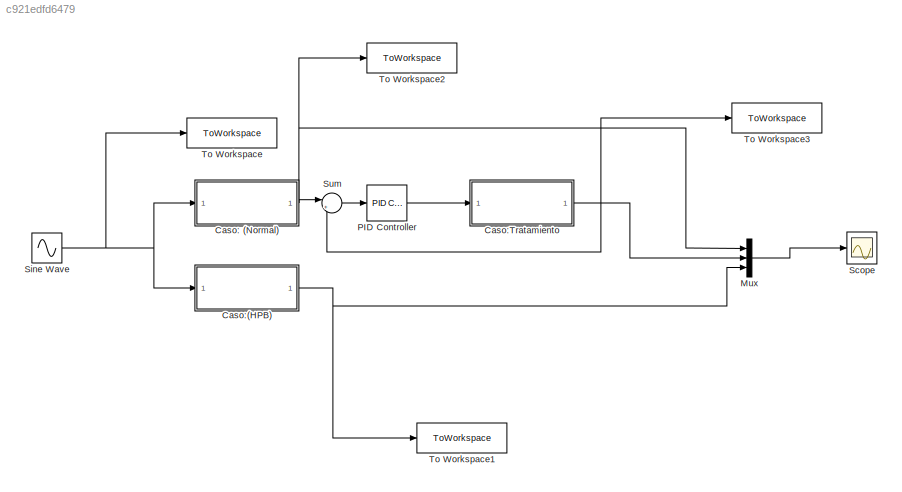
MODEL slx_c921edfd6479
KIND model
CONFIG AbsTol = auto
CONFIG EnableMultiTasking = off
CONFIG FixedStep = auto
CONFIG MaxStep = 1e-3
CONFIG MinStep = auto
CONFIG RelTol = 1e-3
CONFIG SampleTimeConstraint = Unconstrained
CONFIG SolverName = ode15s
CONFIG StartTime = 0.0
CONFIG StopTime = 10.0
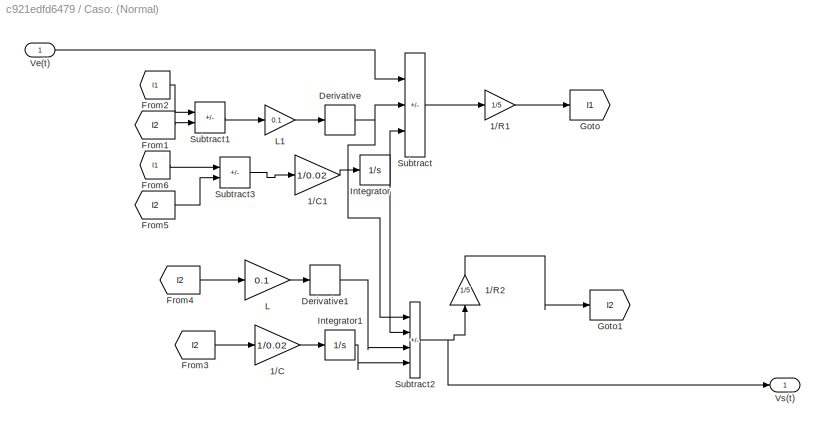
BLOCK [SubSystem] Caso: (Normal)
BLOCK [Gain] Caso: (Normal)/1//C
  Gain = 1/0.02
BLOCK [Gain] Caso: (Normal)/1//C1
  Gain = 1/0.02
BLOCK [Gain] Caso: (Normal)/1//R1
  Gain = 1/5
BLOCK [Gain] Caso: (Normal)/1//R2
  Gain = 1/5
  NameLocation = right
BLOCK [Derivative] Caso: (Normal)/Derivative
BLOCK [Derivative] Caso: (Normal)/Derivative1
BLOCK [From] Caso: (Normal)/From1
  GotoTag = I2
BLOCK [From] Caso: (Normal)/From2
  GotoTag = I1
BLOCK [From] Caso: (Normal)/From3
  GotoTag = I2
BLOCK [From] Caso: (Normal)/From4
  GotoTag = I2
BLOCK [From] Caso: (Normal)/From5
  GotoTag = I2
BLOCK [From] Caso: (Normal)/From6
  GotoTag = I1
BLOCK [Goto] Caso: (Normal)/Goto
  GotoTag = I1
BLOCK [Goto] Caso: (Normal)/Goto1
  GotoTag = I2
BLOCK [Integrator] Caso: (Normal)/Integrator
BLOCK [Integrator] Caso: (Normal)/Integrator1
BLOCK [Gain] Caso: (Normal)/L
  Gain = 0.1
BLOCK [Gain] Caso: (Normal)/L1
  Gain = 0.1
BLOCK [Sum] Caso: (Normal)/Subtract
  IconShape = rectangular
  Inputs = +--
BLOCK [Sum] Caso: (Normal)/Subtract1
  IconShape = rectangular
  Inputs = +-
BLOCK [Sum] Caso: (Normal)/Subtract2
  IconShape = rectangular
  Inputs = ++--
BLOCK [Sum] Caso: (Normal)/Subtract3
  IconShape = rectangular
  Inputs = +-
BLOCK [Inport] Caso: (Normal)/Ve(t)
BLOCK [Outport] Caso: (Normal)/Vs(t)
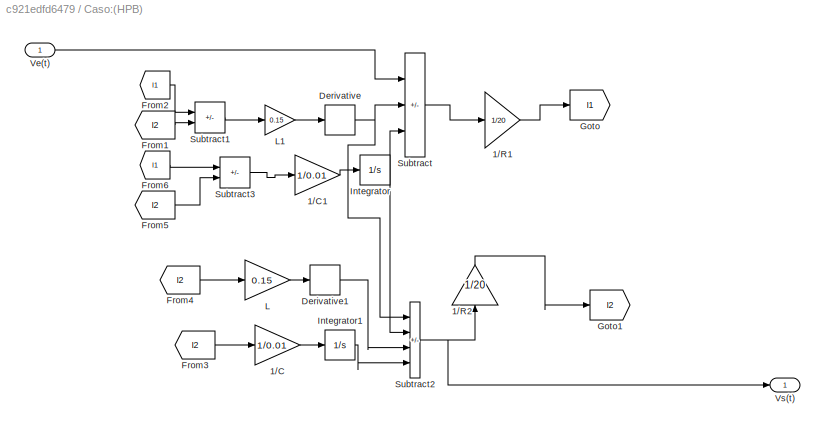
BLOCK [SubSystem] Caso:(HPB)
BLOCK [Gain] Caso:(HPB)/1//C
  Gain = 1/0.01
BLOCK [Gain] Caso:(HPB)/1//C1
  Gain = 1/0.01
BLOCK [Gain] Caso:(HPB)/1//R1
  Gain = 1/20
BLOCK [Gain] Caso:(HPB)/1//R2
  Gain = 1/20
  NameLocation = right
BLOCK [Derivative] Caso:(HPB)/Derivative
BLOCK [Derivative] Caso:(HPB)/Derivative1
BLOCK [From] Caso:(HPB)/From1
  GotoTag = I2
BLOCK [From] Caso:(HPB)/From2
  GotoTag = I1
BLOCK [From] Caso:(HPB)/From3
  GotoTag = I2
BLOCK [From] Caso:(HPB)/From4
  GotoTag = I2
BLOCK [From] Caso:(HPB)/From5
  GotoTag = I2
BLOCK [From] Caso:(HPB)/From6
  GotoTag = I1
BLOCK [Goto] Caso:(HPB)/Goto
  GotoTag = I1
BLOCK [Goto] Caso:(HPB)/Goto1
  GotoTag = I2
BLOCK [Integrator] Caso:(HPB)/Integrator
BLOCK [Integrator] Caso:(HPB)/Integrator1
BLOCK [Gain] Caso:(HPB)/L
  Gain = 0.15
BLOCK [Gain] Caso:(HPB)/L1
  Gain = 0.15
BLOCK [Sum] Caso:(HPB)/Subtract
  IconShape = rectangular
  Inputs = +--
BLOCK [Sum] Caso:(HPB)/Subtract1
  IconShape = rectangular
  Inputs = +-
BLOCK [Sum] Caso:(HPB)/Subtract2
  IconShape = rectangular
  Inputs = ++--
BLOCK [Sum] Caso:(HPB)/Subtract3
  IconShape = rectangular
  Inputs = +-
BLOCK [Inport] Caso:(HPB)/Ve(t)
BLOCK [Outport] Caso:(HPB)/Vs(t)
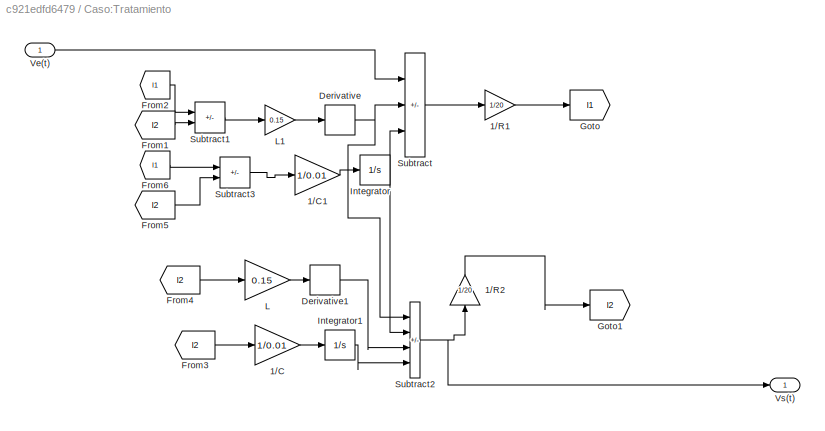
BLOCK [SubSystem] Caso:Tratamiento
BLOCK [Gain] Caso:Tratamiento/1//C
  Gain = 1/0.01
BLOCK [Gain] Caso:Tratamiento/1//C1
  Gain = 1/0.01
BLOCK [Gain] Caso:Tratamiento/1//R1
  Gain = 1/20
BLOCK [Gain] Caso:Tratamiento/1//R2
  Gain = 1/20
  NameLocation = right
BLOCK [Derivative] Caso:Tratamiento/Derivative
BLOCK [Derivative] Caso:Tratamiento/Derivative1
BLOCK [From] Caso:Tratamiento/From1
  GotoTag = I2
BLOCK [From] Caso:Tratamiento/From2
  GotoTag = I1
BLOCK [From] Caso:Tratamiento/From3
  GotoTag = I2
BLOCK [From] Caso:Tratamiento/From4
  GotoTag = I2
BLOCK [From] Caso:Tratamiento/From5
  GotoTag = I2
BLOCK [From] Caso:Tratamiento/From6
  GotoTag = I1
BLOCK [Goto] Caso:Tratamiento/Goto
  GotoTag = I1
BLOCK [Goto] Caso:Tratamiento/Goto1
  GotoTag = I2
BLOCK [Integrator] Caso:Tratamiento/Integrator
BLOCK [Integrator] Caso:Tratamiento/Integrator1
BLOCK [Gain] Caso:Tratamiento/L
  Gain = 0.15
BLOCK [Gain] Caso:Tratamiento/L1
  Gain = 0.15
BLOCK [Sum] Caso:Tratamiento/Subtract
  IconShape = rectangular
  Inputs = +--
BLOCK [Sum] Caso:Tratamiento/Subtract1
  IconShape = rectangular
  Inputs = +-
BLOCK [Sum] Caso:Tratamiento/Subtract2
  IconShape = rectangular
  Inputs = ++--
BLOCK [Sum] Caso:Tratamiento/Subtract3
  IconShape = rectangular
  Inputs = +-
BLOCK [Inport] Caso:Tratamiento/Ve(t)
BLOCK [Outport] Caso:Tratamiento/Vs(t)
BLOCK [Mux] Mux
  DisplayOption = bar
  Inputs = 3
BLOCK [Reference] PID Controller  REF=slpidlib/PID Controller
  LibrarySourceBlock = simulink/Continuous/PID Controller
  SourceBlock = slpidlib/PID Controller
  SourceType = PID 1dof
BLOCK [Scope] Scope
  Floating = off
  NumInputPorts = 1
  ScopeSpecificationString = Simulink.scopes.TimeScopeBlockCfg('CurrentConfiguration', extmgr.ConfigurationSet(extmgr.Configuration('Core','General UI',true),extmgr.Configuration('Core','Source UI',true),extmgr.Configuration('Sources','WiredSimulink',true),extmgr.Configuration('Visuals','Time Domain',true,'SerializedDisplays',{struct('MinYLimReal','-0.30378','MaxYLimReal','0.30196','YLabelReal','','MinYLimMag','0.00000','MaxY...<+1497ch>
BLOCK [Sin] Sine Wave
  Frequency = 1.5708
  SampleTime = 0.001
BLOCK [Sum] Sum
  Inputs = |+-
BLOCK [ToWorkspace] To Workspace
  FixptAsFi = on
  MaxDataPoints = inf
  SampleTime = -1
  SaveFormat = Timeseries
  VariableName = Ve
BLOCK [ToWorkspace] To Workspace1
  FixptAsFi = on
  MaxDataPoints = inf
  SampleTime = -1
  SaveFormat = Timeseries
  VariableName = Vsy
BLOCK [ToWorkspace] To Workspace2
  FixptAsFi = on
  MaxDataPoints = inf
  SampleTime = -1
  SaveFormat = Timeseries
  VariableName = Vsx
BLOCK [ToWorkspace] To Workspace3
  FixptAsFi = on
  MaxDataPoints = inf
  SampleTime = -1
  SaveFormat = Timeseries
  VariableName = Vsz
LINE Caso: (Normal)/1//C1:1 -> Caso: (Normal)/Integrator:1
LINE Caso: (Normal)/1//C:1 -> Caso: (Normal)/Integrator1:1
LINE Caso: (Normal)/1//R1:1 -> Caso: (Normal)/Goto:1
LINE Caso: (Normal)/1//R2:1 -> Caso: (Normal)/Goto1:1
LINE Caso: (Normal)/Derivative1:1 -> Caso: (Normal)/Subtract2:3
NET Caso: (Normal)/Derivative:1 -> Caso: (Normal)/Subtract2:1, Caso: (Normal)/Subtract:2
LINE Caso: (Normal)/From1:1 -> Caso: (Normal)/Subtract1:2
LINE Caso: (Normal)/From2:1 -> Caso: (Normal)/Subtract1:1
LINE Caso: (Normal)/From3:1 -> Caso: (Normal)/1//C:1
LINE Caso: (Normal)/From4:1 -> Caso: (Normal)/L:1
LINE Caso: (Normal)/From5:1 -> Caso: (Normal)/Subtract3:2
LINE Caso: (Normal)/From6:1 -> Caso: (Normal)/Subtract3:1
LINE Caso: (Normal)/Integrator1:1 -> Caso: (Normal)/Subtract2:4
NET Caso: (Normal)/Integrator:1 -> Caso: (Normal)/Subtract2:2, Caso: (Normal)/Subtract:3
LINE Caso: (Normal)/L1:1 -> Caso: (Normal)/Derivative:1
LINE Caso: (Normal)/L:1 -> Caso: (Normal)/Derivative1:1
LINE Caso: (Normal)/Subtract1:1 -> Caso: (Normal)/L1:1
NET Caso: (Normal)/Subtract2:1 -> Caso: (Normal)/1//R2:1, Caso: (Normal)/Vs(t):1
LINE Caso: (Normal)/Subtract3:1 -> Caso: (Normal)/1//C1:1
LINE Caso: (Normal)/Subtract:1 -> Caso: (Normal)/1//R1:1
LINE Caso: (Normal)/Ve(t):1 -> Caso: (Normal)/Subtract:1
NET Caso: (Normal):1 -> Mux:1, Sum:1, To Workspace2:1
LINE Caso:(HPB)/1//C1:1 -> Caso:(HPB)/Integrator:1
LINE Caso:(HPB)/1//C:1 -> Caso:(HPB)/Integrator1:1
LINE Caso:(HPB)/1//R1:1 -> Caso:(HPB)/Goto:1
LINE Caso:(HPB)/1//R2:1 -> Caso:(HPB)/Goto1:1
LINE Caso:(HPB)/Derivative1:1 -> Caso:(HPB)/Subtract2:3
NET Caso:(HPB)/Derivative:1 -> Caso:(HPB)/Subtract2:1, Caso:(HPB)/Subtract:2
LINE Caso:(HPB)/From1:1 -> Caso:(HPB)/Subtract1:2
LINE Caso:(HPB)/From2:1 -> Caso:(HPB)/Subtract1:1
LINE Caso:(HPB)/From3:1 -> Caso:(HPB)/1//C:1
LINE Caso:(HPB)/From4:1 -> Caso:(HPB)/L:1
LINE Caso:(HPB)/From5:1 -> Caso:(HPB)/Subtract3:2
LINE Caso:(HPB)/From6:1 -> Caso:(HPB)/Subtract3:1
LINE Caso:(HPB)/Integrator1:1 -> Caso:(HPB)/Subtract2:4
NET Caso:(HPB)/Integrator:1 -> Caso:(HPB)/Subtract2:2, Caso:(HPB)/Subtract:3
LINE Caso:(HPB)/L1:1 -> Caso:(HPB)/Derivative:1
LINE Caso:(HPB)/L:1 -> Caso:(HPB)/Derivative1:1
LINE Caso:(HPB)/Subtract1:1 -> Caso:(HPB)/L1:1
NET Caso:(HPB)/Subtract2:1 -> Caso:(HPB)/1//R2:1, Caso:(HPB)/Vs(t):1
LINE Caso:(HPB)/Subtract3:1 -> Caso:(HPB)/1//C1:1
LINE Caso:(HPB)/Subtract:1 -> Caso:(HPB)/1//R1:1
LINE Caso:(HPB)/Ve(t):1 -> Caso:(HPB)/Subtract:1
NET Caso:(HPB):1 -> Mux:3, To Workspace1:1
LINE Caso:Tratamiento/1//C1:1 -> Caso:Tratamiento/Integrator:1
LINE Caso:Tratamiento/1//C:1 -> Caso:Tratamiento/Integrator1:1
LINE Caso:Tratamiento/1//R1:1 -> Caso:Tratamiento/Goto:1
LINE Caso:Tratamiento/1//R2:1 -> Caso:Tratamiento/Goto1:1
LINE Caso:Tratamiento/Derivative1:1 -> Caso:Tratamiento/Subtract2:3
NET Caso:Tratamiento/Derivative:1 -> Caso:Tratamiento/Subtract2:1, Caso:Tratamiento/Subtract:2
LINE Caso:Tratamiento/From1:1 -> Caso:Tratamiento/Subtract1:2
LINE Caso:Tratamiento/From2:1 -> Caso:Tratamiento/Subtract1:1
LINE Caso:Tratamiento/From3:1 -> Caso:Tratamiento/1//C:1
LINE Caso:Tratamiento/From4:1 -> Caso:Tratamiento/L:1
LINE Caso:Tratamiento/From5:1 -> Caso:Tratamiento/Subtract3:2
LINE Caso:Tratamiento/From6:1 -> Caso:Tratamiento/Subtract3:1
LINE Caso:Tratamiento/Integrator1:1 -> Caso:Tratamiento/Subtract2:4
NET Caso:Tratamiento/Integrator:1 -> Caso:Tratamiento/Subtract2:2, Caso:Tratamiento/Subtract:3
LINE Caso:Tratamiento/L1:1 -> Caso:Tratamiento/Derivative:1
LINE Caso:Tratamiento/L:1 -> Caso:Tratamiento/Derivative1:1
LINE Caso:Tratamiento/Subtract1:1 -> Caso:Tratamiento/L1:1
NET Caso:Tratamiento/Subtract2:1 -> Caso:Tratamiento/1//R2:1, Caso:Tratamiento/Vs(t):1
LINE Caso:Tratamiento/Subtract3:1 -> Caso:Tratamiento/1//C1:1
LINE Caso:Tratamiento/Subtract:1 -> Caso:Tratamiento/1//R1:1
LINE Caso:Tratamiento/Ve(t):1 -> Caso:Tratamiento/Subtract:1
NET Caso:Tratamiento:1 -> Mux:2, Sum:2, To Workspace3:1
LINE Mux:1 -> Scope:1
LINE PID Controller:1 -> Caso:Tratamiento:1
NET Sine Wave:1 -> Caso: (Normal):1, Caso:(HPB):1, To Workspace:1
LINE Sum:1 -> PID Controller:1
note: NET lines group one-source signal fan-out (src -> all destinations, sorted); 1:1 wires keep LINE
